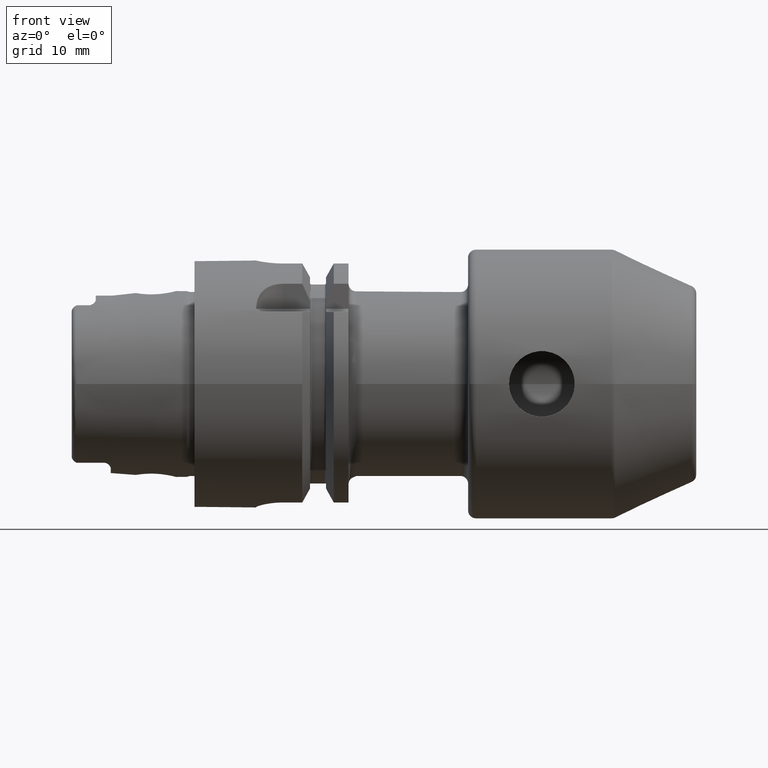
[diagram: clean part render]
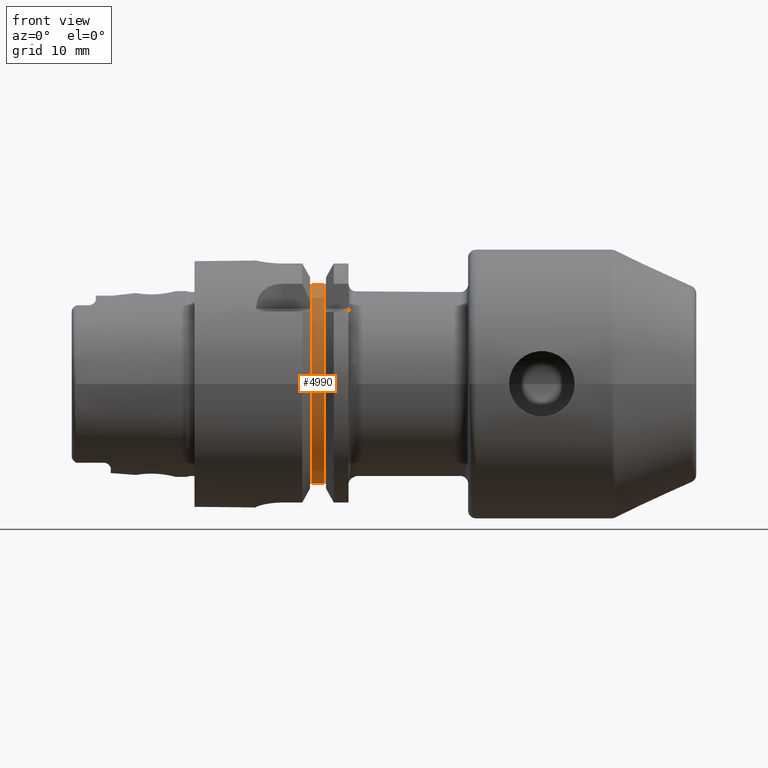
[diagram: same view with one face highlighted and labeled with its STEP entity id]
A machine part, front view. The second image highlights one B-rep face of the part: STEP entity #4990.
In plain terms, the highlighted cylindrical surface (partial cylindrical patch) has radius 13.225 mm, axis along (1, 0, 0).
Its self-contained STEP definition (entity closure, byte-faithful):
#1677=DIRECTION('',(-1.E0,0.E0,0.E0));
#1678=VECTOR('',#1677,1.575E0);
#1679=CARTESIAN_POINT('',(1.67875E1,-2.913867704615E0,-1.29E1));
#1680=LINE('',#1679,#1678);
#1681=CARTESIAN_POINT('',(1.52125E1,0.E0,0.E0));
#1682=DIRECTION('',(-1.E0,0.E0,0.E0));
#1683=DIRECTION('',(0.E0,-2.203302612185E-1,-9.754253308129E-1));
#1684=AXIS2_PLACEMENT_3D('',#1681,#1682,#1683);
#1686=DIRECTION('',(1.E0,0.E0,0.E0));
#1687=VECTOR('',#1686,1.575E0);
#1688=CARTESIAN_POINT('',(1.52125E1,-2.913867704615E0,1.29E1));
#1689=LINE('',#1688,#1687);
#1705=CARTESIAN_POINT('',(1.67875E1,0.E0,0.E0));
#1706=DIRECTION('',(-1.E0,0.E0,0.E0));
#1707=DIRECTION('',(0.E0,-2.203302612185E-1,-9.754253308129E-1));
#1708=AXIS2_PLACEMENT_3D('',#1705,#1706,#1707);
#3094=CARTESIAN_POINT('',(1.52125E1,-2.913867704615E0,-1.29E1));
#3095=CARTESIAN_POINT('',(1.52125E1,-2.913867704615E0,1.29E1));
#3096=VERTEX_POINT('',#3094);
#3097=VERTEX_POINT('',#3095);
#3106=CARTESIAN_POINT('',(1.67875E1,-2.913867704615E0,-1.29E1));
#3107=CARTESIAN_POINT('',(1.67875E1,-2.913867704615E0,1.29E1));
#3108=VERTEX_POINT('',#3106);
#3109=VERTEX_POINT('',#3107);
#4978=CARTESIAN_POINT('',(1.376132433122E1,0.E0,0.E0));
#4979=DIRECTION('',(1.E0,0.E0,0.E0));
#4980=DIRECTION('',(0.E0,-1.E0,0.E0));
#4981=AXIS2_PLACEMENT_3D('',#4978,#4979,#4980);
#4982=CYLINDRICAL_SURFACE('',#4981,1.3225E1);
#4983=ORIENTED_EDGE('',*,*,#4468,.T.);
#4984=ORIENTED_EDGE('',*,*,#4956,.T.);
#4985=ORIENTED_EDGE('',*,*,#4544,.T.);
#4987=ORIENTED_EDGE('',*,*,#4986,.F.);
#4988=EDGE_LOOP('',(#4983,#4984,#4985,#4987));
#4989=FACE_OUTER_BOUND('',#4988,.F.);
#4990=ADVANCED_FACE('',(#4989),#4982,.T.);
#1685=CIRCLE('',#1684,1.3225E1);
#1709=CIRCLE('',#1708,1.3225E1);
#4468=EDGE_CURVE('',#3108,#3096,#1680,.T.);
#4544=EDGE_CURVE('',#3097,#3109,#1689,.T.);
#4956=EDGE_CURVE('',#3096,#3097,#1685,.T.);
#4986=EDGE_CURVE('',#3108,#3109,#1709,.T.);